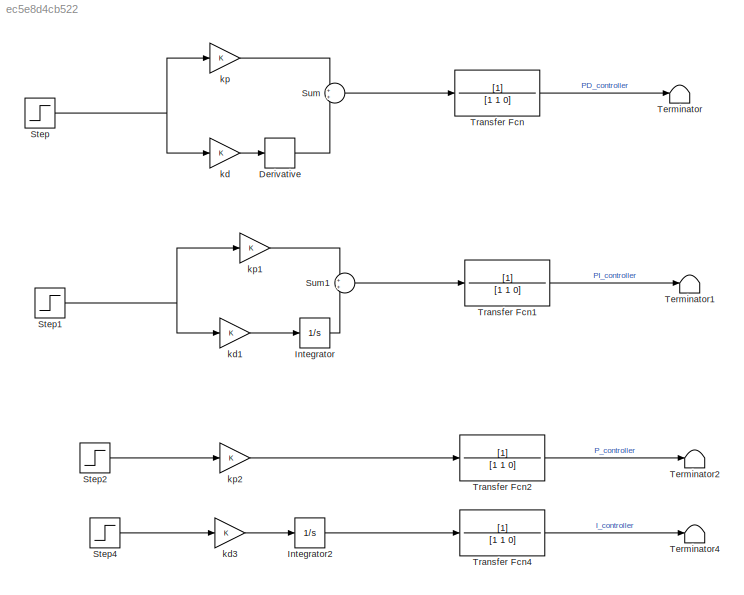
MODEL slx_ec5e8d4cb522
KIND model
CONFIG AbsTol = auto
CONFIG EnableMultiTasking = off
CONFIG FixedStep = auto
CONFIG MaxStep = auto
CONFIG MinStep = auto
CONFIG RelTol = 1e-3
CONFIG SampleTimeConstraint = Unconstrained
CONFIG SolverName = VariableStepAuto
CONFIG StartTime = 0.0
CONFIG StopTime = 50
BLOCK [Derivative] Derivative
BLOCK [Integrator] Integrator
BLOCK [Integrator] Integrator2
BLOCK [Step] Step
  SampleTime = 0
  Time = 10
BLOCK [Step] Step1
  SampleTime = 0
  Time = 10
BLOCK [Step] Step2
  SampleTime = 0
  Time = 10
BLOCK [Step] Step4
  SampleTime = 0
  Time = 10
BLOCK [Sum] Sum
BLOCK [Sum] Sum1
BLOCK [Terminator] Terminator
BLOCK [Terminator] Terminator1
BLOCK [Terminator] Terminator2
BLOCK [Terminator] Terminator4
BLOCK [TransferFcn] Transfer Fcn
  Denominator = [1 1 0]
BLOCK [TransferFcn] Transfer Fcn1
  Denominator = [1 1 0]
BLOCK [TransferFcn] Transfer Fcn2
  Denominator = [1 1 0]
BLOCK [TransferFcn] Transfer Fcn4
  Denominator = [1 1 0]
BLOCK [Gain] kd
BLOCK [Gain] kd1
BLOCK [Gain] kd3
BLOCK [Gain] kp
BLOCK [Gain] kp1
BLOCK [Gain] kp2
LINE Derivative:1 -> Sum:2
LINE Integrator2:1 -> Transfer Fcn4:1
LINE Integrator:1 -> Sum1:2
NET Step1:1 -> kd1:1, kp1:1
LINE Step2:1 -> kp2:1
LINE Step4:1 -> kd3:1
NET Step:1 -> kd:1, kp:1
LINE Sum1:1 -> Transfer Fcn1:1
LINE Sum:1 -> Transfer Fcn:1
LINE Transfer Fcn1:1 -> Terminator1:1
LINE Transfer Fcn2:1 -> Terminator2:1
LINE Transfer Fcn4:1 -> Terminator4:1
LINE Transfer Fcn:1 -> Terminator:1
LINE kd1:1 -> Integrator:1
LINE kd3:1 -> Integrator2:1
LINE kd:1 -> Derivative:1
LINE kp1:1 -> Sum1:1
LINE kp2:1 -> Transfer Fcn2:1
LINE kp:1 -> Sum:1
note: NET lines group one-source signal fan-out (src -> all destinations, sorted); 1:1 wires keep LINE
